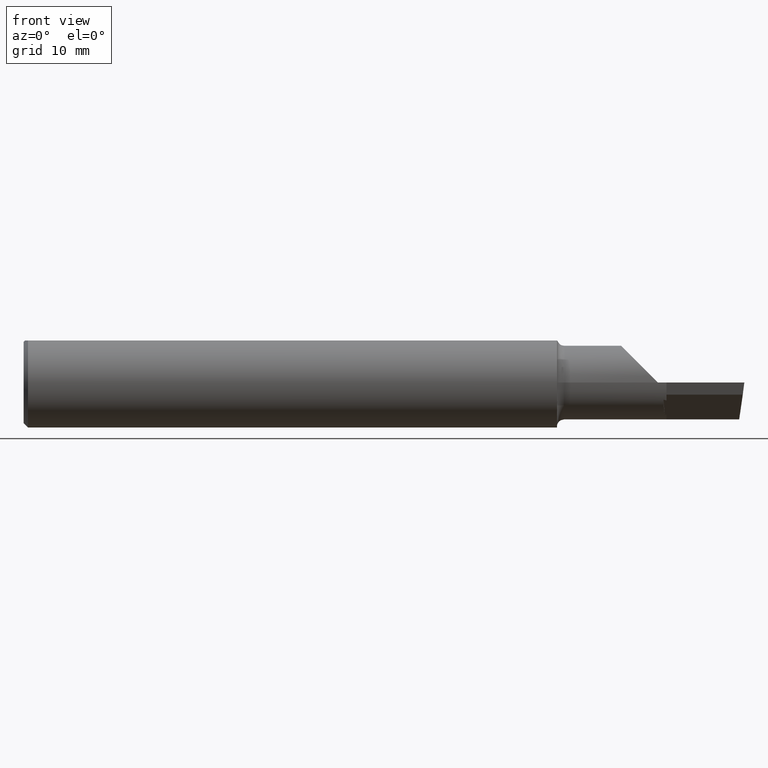
[diagram: clean part render]
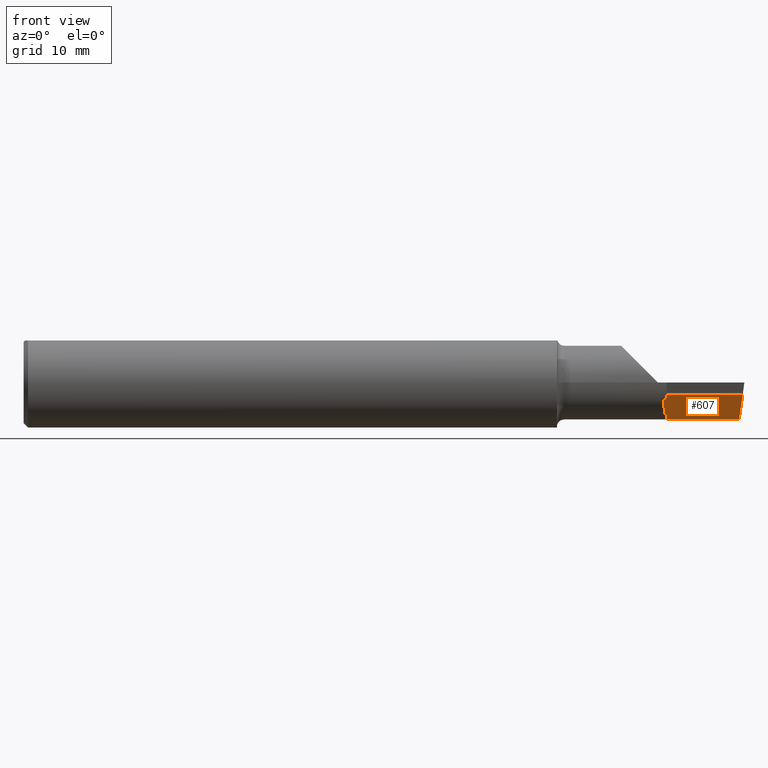
[diagram: same view with one face highlighted and labeled with its STEP entity id]
A machine part, front view. The second image highlights one B-rep face of the part: STEP entity #607.
In plain terms, the highlighted planar face has unit normal (0.0684, 0.71, 0.7009).
Its self-contained STEP definition (entity closure, byte-faithful):
#29 = DIRECTION ( 'NONE',  ( -0.06717917588521486738, -0.6976824170844043715, 0.7132504491541850067 ) ) ;
#49 = EDGE_LOOP ( 'NONE', ( #262, #562, #426, #366, #123, #563, #584, #649 ) ) ;
#83 = LINE ( 'NONE', #181, #153 ) ;
#123 = ORIENTED_EDGE ( 'NONE', *, *, #379, .F. ) ;
#138 = VECTOR ( 'NONE', #29, 39.37007874015748143 ) ;
#152 = VERTEX_POINT ( 'NONE', #524 ) ;
#153 = VECTOR ( 'NONE', #408, 39.37007874015748143 ) ;
#164 =( BOUNDED_CURVE ( )  B_SPLINE_CURVE ( 3, ( #207, #599, #545, #498 ),
 .UNSPECIFIED., .F., .T. ) 
 B_SPLINE_CURVE_WITH_KNOTS ( ( 4, 4 ),
 ( 2.847793815029258546, 2.868396356574266282 ),
 .UNSPECIFIED. ) 
 CURVE ( )  GEOMETRIC_REPRESENTATION_ITEM ( )  RATIONAL_B_SPLINE_CURVE ( ( 1.000000000000000000, 0.9999646282529517372, 0.9999646282529517372, 1.000000000000000000 ) ) 
 REPRESENTATION_ITEM ( '' )  );
#169 = CARTESIAN_POINT ( 'NONE',  ( 2.229999999999999982, -0.07288638121117572977, -0.06196650465749591746 ) ) ;
#177 = PLANE ( 'NONE',  #611 ) ;
#179 = EDGE_CURVE ( 'NONE', #286, #347, #576, .T. ) ;
#181 = CARTESIAN_POINT ( 'NONE',  ( 2.229999999999999982, -0.1250987282888250673, -0.009079441937751876746 ) ) ;
#182 = LINE ( 'NONE', #467, #458 ) ;
#197 = EDGE_CURVE ( 'NONE', #286, #445, #182, .T. ) ;
#207 = CARTESIAN_POINT ( 'NONE',  ( 2.219243579197731631, -0.07413921331227917022, -0.05964837307989716980 ) ) ;
#234 = CARTESIAN_POINT ( 'NONE',  ( 2.229999999999999982, -0.09259815981058530654, -0.04199999999999994016 ) ) ;
#235 = DIRECTION ( 'NONE',  ( -0.9953961983671787417, 0.09584575252022421721, -1.833768617864262852E-17 ) ) ;
#242 = VECTOR ( 'NONE', #298, 39.37007874015748143 ) ;
#253 = CARTESIAN_POINT ( 'NONE',  ( 2.229999999999999982, -0.007794043580176780381, -0.1278999999999999859 ) ) ;
#262 = ORIENTED_EDGE ( 'NONE', *, *, #179, .F. ) ;
#286 = VERTEX_POINT ( 'NONE', #635 ) ;
#292 = CARTESIAN_POINT ( 'NONE',  ( 2.217581325552286042, -0.09140237746813982544, -0.04199999999999994016 ) ) ;
#298 = DIRECTION ( 'NONE',  ( 0.9953961983671787417, -0.09584575252022421721, -0.000000000000000000 ) ) ;
#344 = DIRECTION ( 'NONE',  ( 0.06836202603457076921, 0.7099667855717585185, 0.7009092642998475675 ) ) ;
#347 = VERTEX_POINT ( 'NONE', #253 ) ;
#348 = DIRECTION ( 'NONE',  ( 0.000000000000000000, -0.7025528302622682242, 0.7116315905652843554 ) ) ;
#349 = CARTESIAN_POINT ( 'NONE',  ( 2.493055307542864529, -0.03312338876679007948, -0.1278999999999999859 ) ) ;
#352 = CARTESIAN_POINT ( 'NONE',  ( 2.229999999999999982, -0.1250987282888250673, -0.009079441937751876746 ) ) ;
#354 = DIRECTION ( 'NONE',  ( -4.798168849487817696E-18, -0.7025528302622682242, 0.7116315905652843554 ) ) ;
#356 = VECTOR ( 'NONE', #354, 39.37007874015748143 ) ;
#357 = LINE ( 'NONE', #513, #138 ) ;
#366 = ORIENTED_EDGE ( 'NONE', *, *, #579, .F. ) ;
#377 = CARTESIAN_POINT ( 'NONE',  ( 2.226142141782128547, -0.02355416889857119347, -0.1115599441614215925 ) ) ;
#379 = EDGE_CURVE ( 'NONE', #589, #551, #164, .T. ) ;
#382 =( BOUNDED_CURVE ( )  B_SPLINE_CURVE ( 3, ( #443, #655, #377, #606 ),
 .UNSPECIFIED., .F., .F. ) 
 B_SPLINE_CURVE_WITH_KNOTS ( ( 4, 4 ),
 ( 3.414788950605319950, 3.426164066945256881 ),
 .UNSPECIFIED. ) 
 CURVE ( )  GEOMETRIC_REPRESENTATION_ITEM ( )  RATIONAL_B_SPLINE_CURVE ( ( 1.000000000000000000, 0.9999892172564213144, 0.9999892172564213144, 1.000000000000000000 ) ) 
 REPRESENTATION_ITEM ( '' )  );
#402 = DIRECTION ( 'NONE',  ( 0.1020886612874973703, -0.7038430390621321919, 0.7029814233678641777 ) ) ;
#408 = DIRECTION ( 'NONE',  ( -4.798168849487817696E-18, -0.7025528302622682242, 0.7116315905652843554 ) ) ;
#426 = ORIENTED_EDGE ( 'NONE', *, *, #587, .F. ) ;
#443 = CARTESIAN_POINT ( 'NONE',  ( 2.229999999999999982, -0.02439791101555200195, -0.1110815685830198740 ) ) ;
#445 = VERTEX_POINT ( 'NONE', #615 ) ;
#458 = VECTOR ( 'NONE', #402, 39.37007874015748854 ) ;
#467 = CARTESIAN_POINT ( 'NONE',  ( 2.489852269752854230, -0.08495580699522407853, -0.07508537277742928506 ) ) ;
#491 = CARTESIAN_POINT ( 'NONE',  ( 2.224155181711049423, -0.02313027091166858576, -0.1117955251181489834 ) ) ;
#494 = EDGE_CURVE ( 'NONE', #152, #500, #382, .T. ) ;
#498 = CARTESIAN_POINT ( 'NONE',  ( 2.229999999999999982, -0.07288638121117572977, -0.06196650465749591746 ) ) ;
#500 = VERTEX_POINT ( 'NONE', #491 ) ;
#509 = FACE_OUTER_BOUND ( 'NONE', #49, .T. ) ;
#513 = CARTESIAN_POINT ( 'NONE',  ( 2.217581325552286042, -0.09140237746813982544, -0.04199999999999994016 ) ) ;
#524 = CARTESIAN_POINT ( 'NONE',  ( 2.229999999999999982, -0.02439791101555200195, -0.1110815685830198740 ) ) ;
#545 = CARTESIAN_POINT ( 'NONE',  ( 2.226541365962205532, -0.07331194456661024872, -0.06119810979516130539 ) ) ;
#551 = VERTEX_POINT ( 'NONE', #169 ) ;
#562 = ORIENTED_EDGE ( 'NONE', *, *, #197, .T. ) ;
#563 = ORIENTED_EDGE ( 'NONE', *, *, #637, .F. ) ;
#569 = LINE ( 'NONE', #292, #242 ) ;
#576 = LINE ( 'NONE', #349, #621 ) ;
#579 = EDGE_CURVE ( 'NONE', #551, #652, #83, .T. ) ;
#584 = ORIENTED_EDGE ( 'NONE', *, *, #494, .F. ) ;
#587 = EDGE_CURVE ( 'NONE', #652, #445, #569, .T. ) ;
#589 = VERTEX_POINT ( 'NONE', #623 ) ;
#599 = CARTESIAN_POINT ( 'NONE',  ( 2.222955765532497630, -0.07372957003912058993, -0.06042537193620697161 ) ) ;
#606 = CARTESIAN_POINT ( 'NONE',  ( 2.224155181711049423, -0.02313027091166858576, -0.1117955251181489834 ) ) ;
#607 = ADVANCED_FACE ( 'NONE', ( #509 ), #177, .F. ) ;
#611 = AXIS2_PLACEMENT_3D ( 'NONE', #680, #344, #348 ) ;
#615 = CARTESIAN_POINT ( 'NONE',  ( 2.494657007549286654, -0.1180817311663149571, -0.04199999999999994016 ) ) ;
#621 = VECTOR ( 'NONE', #235, 39.37007874015748143 ) ;
#623 = CARTESIAN_POINT ( 'NONE',  ( 2.219243579197731631, -0.07413921331227917022, -0.05964837307989716980 ) ) ;
#635 = CARTESIAN_POINT ( 'NONE',  ( 2.482182401943660466, -0.03207644703550099896, -0.1278999999999999859 ) ) ;
#637 = EDGE_CURVE ( 'NONE', #500, #589, #357, .T. ) ;
#649 = ORIENTED_EDGE ( 'NONE', *, *, #653, .F. ) ;
#652 = VERTEX_POINT ( 'NONE', #234 ) ;
#653 = EDGE_CURVE ( 'NONE', #347, #152, #683, .T. ) ;
#655 = CARTESIAN_POINT ( 'NONE',  ( 2.228090435553063742, -0.02397672015612753796, -0.1113219560835474742 ) ) ;
#680 = CARTESIAN_POINT ( 'NONE',  ( 2.217581325552286042, -0.09140237746813982544, -0.04199999999999994016 ) ) ;
#683 = LINE ( 'NONE', #352, #356 ) ;